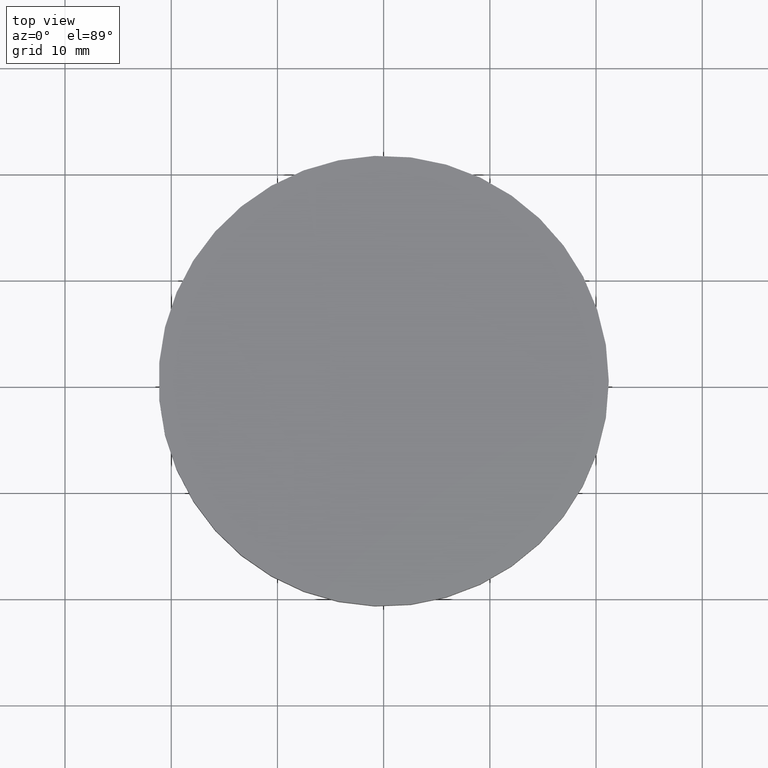
[diagram: clean part render]
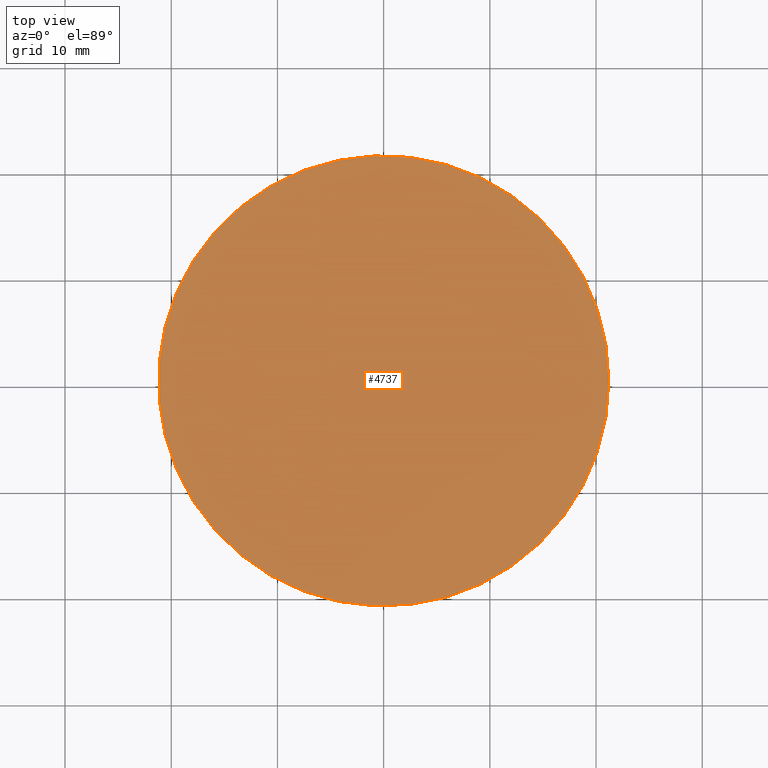
[diagram: same view with one face highlighted and labeled with its STEP entity id]
A machine part, top view. The second image highlights one B-rep face of the part: STEP entity #4737.
In plain terms, the highlighted planar face has unit normal (0, 0, 1).
Its self-contained STEP definition (entity closure, byte-faithful):
#146 = DIRECTION ( 'NONE',  ( 1.000000000000000000, 0.0000000000000000000, 0.0000000000000000000 ) ) ;
#2348 = AXIS2_PLACEMENT_3D ( 'NONE', #5647, #3715, #11115 ) ;
#3715 = DIRECTION ( 'NONE',  ( 0.0000000000000000000, 0.0000000000000000000, 1.000000000000000000 ) ) ;
#4737 = ADVANCED_FACE ( 'NONE', ( #11882 ), #14651, .T. ) ;
#5647 = CARTESIAN_POINT ( 'NONE',  ( 0.0000000000000000000, 0.0000000000000000000, 4.000000000000000000 ) ) ;
#6748 = VERTEX_POINT ( 'NONE', #13966 ) ;
#11115 = DIRECTION ( 'NONE',  ( 1.000000000000000000, 0.0000000000000000000, -0.0000000000000000000 ) ) ;
#11882 = FACE_OUTER_BOUND ( 'NONE', #21241, .T. ) ;
#13966 = CARTESIAN_POINT ( 'NONE',  ( 21.19999999999999900, 0.0000000000000000000, 4.000000000000000000 ) ) ;
#14651 = PLANE ( 'NONE',  #2348 ) ;
#14864 = CARTESIAN_POINT ( 'NONE',  ( 0.0000000000000000000, 0.0000000000000000000, 4.000000000000000000 ) ) ;
#16637 = ORIENTED_EDGE ( 'NONE', *, *, #21077, .T. ) ;
#16787 = CIRCLE ( 'NONE', #19138, 21.19999999999999900 ) ;
#19138 = AXIS2_PLACEMENT_3D ( 'NONE', #14864, #20014, #146 ) ;
#20014 = DIRECTION ( 'NONE',  ( 0.0000000000000000000, 0.0000000000000000000, 1.000000000000000000 ) ) ;
#21077 = EDGE_CURVE ( 'NONE', #6748, #6748, #16787, .T. ) ;
#21241 = EDGE_LOOP ( 'NONE', ( #16637 ) ) ;